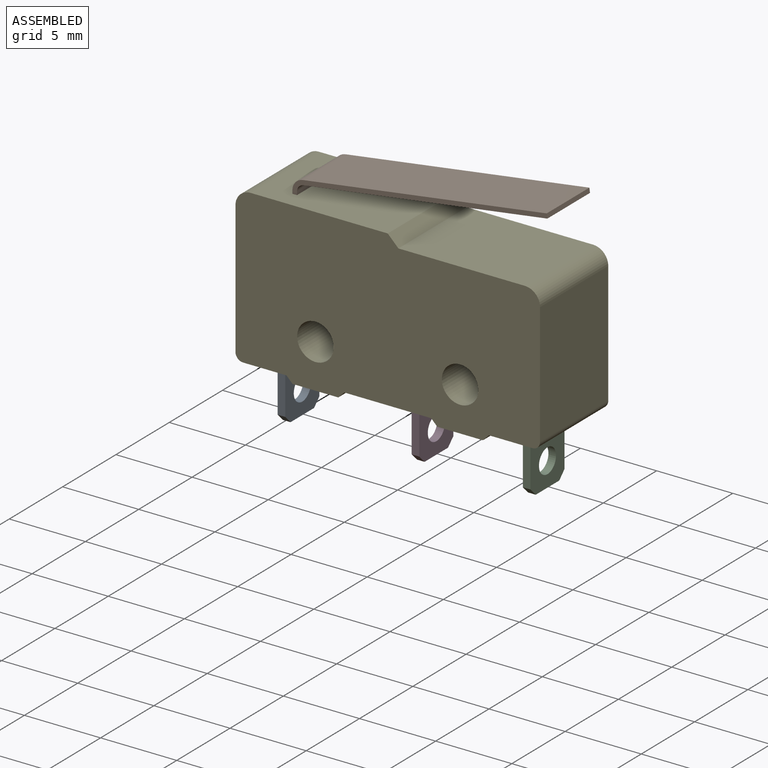
[diagram: assembled view]
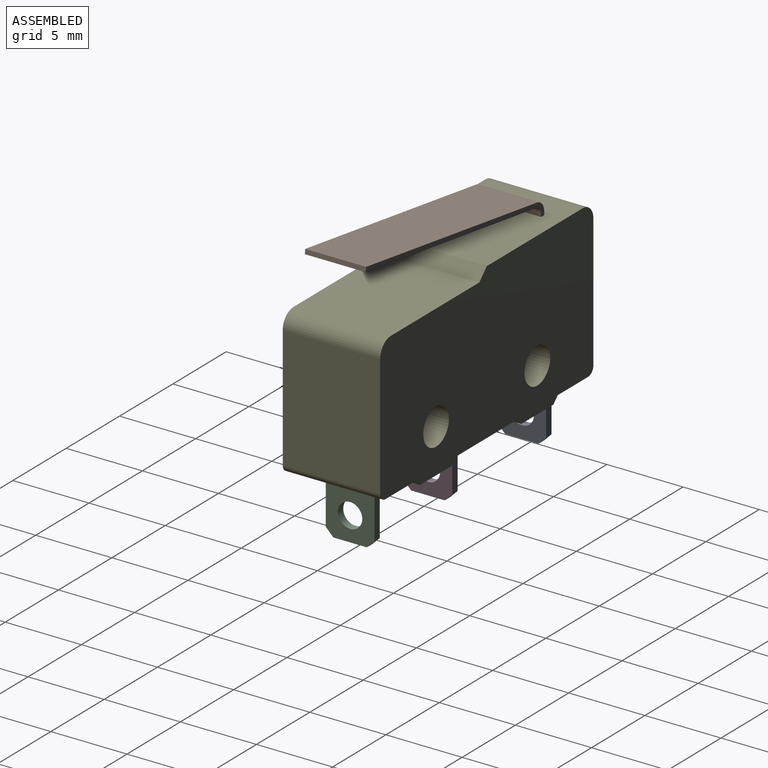
[diagram: assembled view, second angle]
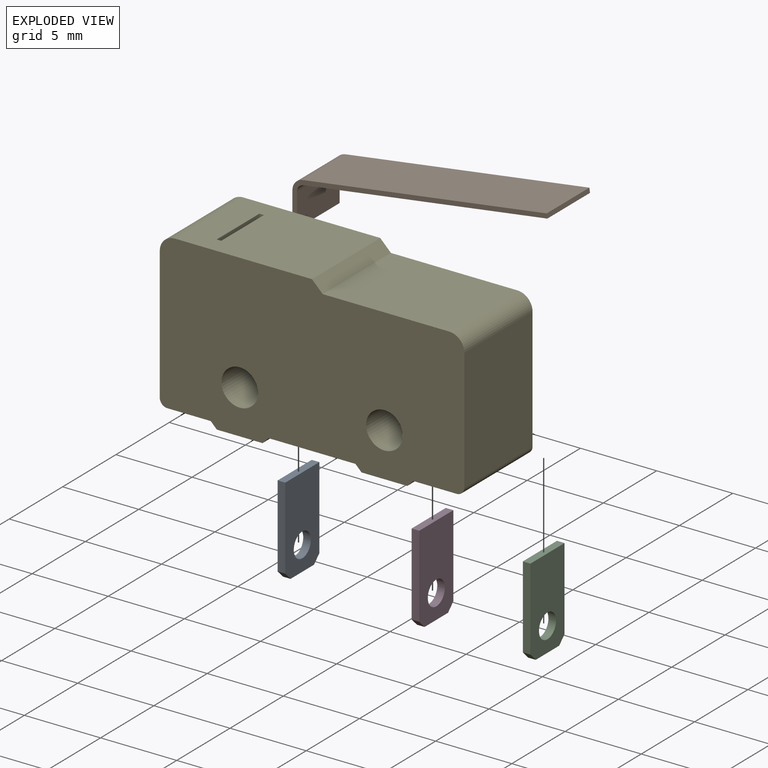
[diagram: exploded view]
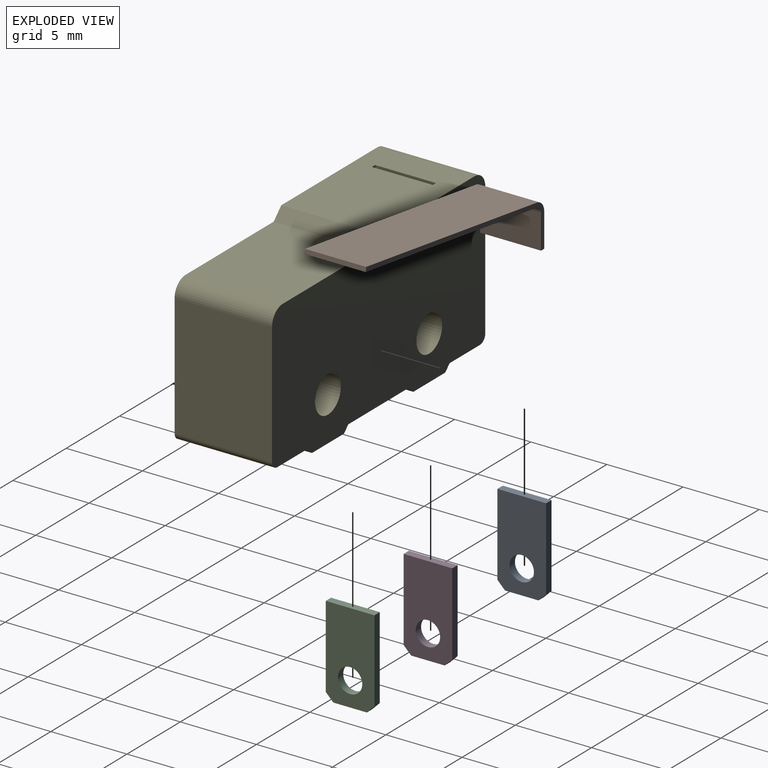
[diagram: exploded view, second angle]
ASSEMBLY  parts=5 mates=4
PART A: 9 faces, bbox 5.9x3.2x0.5 mm
  f0: plane 5.4x0.5mm, normal (0,1,0), area 2.7mm2, adj f1,f5,f7,f8
  f1: plane 3.2x0.5mm, normal (-1,0,0), area 1.6mm2, adj f0,f2,f7,f8
  f2: plane 5.4x0.5mm, normal (0,-1,0), area 2.7mm2, adj f1,f3,f7,f8
  f3: plane 0.5x0.5mm, normal (0.71,-0.71,0), area 0.4mm2, adj f2,f4,f7,f8
  f4: plane 2.2x0.5mm, normal (1,0,0), area 1.1mm2, adj f3,f5,f7,f8
  f5: plane 0.5x0.5mm, normal (0.71,0.71,0), area 0.4mm2, adj f0,f4,f7,f8
  f6: cylinder r=0.8mm len=1.6mm, axis (0,0,-1), area 2.5mm2, adj f7,f8
  f7: plane 5.9x3.2mm, normal (0,0,1), area 16.6mm2, adj f0,f1,f2,f3,f4,f5,f6
  f8: plane 5.9x3.2mm, normal (0,0,-1), area 16.6mm2, adj f0,f1,f2,f3,f4,f5,f6
PART B: 10 faces, bbox 16.7x4x5.3 mm
  f0: plane 16.01x4mm, normal (0.14,0,-0.99), area 64.7mm2, adj f1,f7,f8,f9
  f1: plane 4x0.3mm, normal (0.99,0,0.14), area 1.2mm2, adj f0,f2,f8,f9
  f2: plane 16.01x4mm, normal (-0.14,0,0.99), area 64.7mm2, adj f1,f3,f8,f9
  f3: cylinder r=0.8mm len=4mm, axis (0,1,0), area 4.6mm2, adj f2,f4,f8,f9
  f4: plane 4x2.21mm, normal (-1,0,0), area 8.8mm2, adj f3,f5,f8,f9
  f5: plane 4x0.3mm, normal (0,0,-1), area 1.2mm2, adj f4,f6,f8,f9
  f6: plane 4x2.21mm, normal (1,0,0), area 8.8mm2, adj f5,f7,f8,f9
  f7: cylinder r=0.5mm len=4mm, axis (0,1,0), area 2.9mm2, adj f0,f6,f8,f9
  f8: plane 16.74x5.3mm, normal (0,-1,0), area 5.8mm2, adj f0,f1,f2,f3,f4,f5,f6,f7
  f9: plane 16.74x5.3mm, normal (0,1,0), area 5.8mm2, adj f0,f1,f2,f3,f4,f5,f6,f7
PART C: same geometry as A
PART D: same geometry as A
PART E: 42 faces, bbox 20x6.4x10.6 mm
  f0: plane 8.7x6.4mm, normal (-1,0,0), area 55.7mm2, adj f1,f18,f20,f21
  f1: cylinder r=0.5mm len=6.4mm, axis (0,1,0), area 5mm2, adj f0,f2,f20,f21
  f2: plane 6.4x2.85mm, normal (0,0,-1), area 16.6mm2, adj f1,f3,f20,f21,f32,f33,f34,f35
  f3: plane 6.4x0.4mm, normal (-0.71,0,-0.71), area 3.6mm2, adj f2,f4,f20,f21
  f4: plane 6.4x3mm, normal (0,0,-1), area 19.2mm2, adj f3,f5,f20,f21
  f5: plane 6.4x0.4mm, normal (0.71,0,-0.71), area 3.6mm2, adj f4,f6,f20,f21
  f6: plane 6.4x5.7mm, normal (0,0,-1), area 34.9mm2, adj f5,f7,f20,f21,f27,f28,f29,f30
  f7: plane 6.4x0.4mm, normal (-0.71,0,-0.71), area 3.6mm2, adj f6,f8,f20,f21
  f8: plane 6.4x3mm, normal (0,0,-1), area 19.2mm2, adj f7,f9,f20,f21
  f9: plane 6.4x0.4mm, normal (0.71,0,-0.71), area 3.6mm2, adj f8,f10,f20,f21
  f10: plane 6.4x2.85mm, normal (0,0,-1), area 16.6mm2, adj f9,f11,f20,f21,f22,f23,f24,f25
  f11: cylinder r=0.5mm len=6.4mm, axis (0,1,0), area 5mm2, adj f10,f12,f20,f21
  f12: plane 8x6.4mm, normal (1,0,0), area 51.2mm2, adj f11,f13,f20,f21
  f13: cylinder r=1mm len=6.4mm, axis (0,1,0), area 10.1mm2, adj f12,f14,f20,f21
  f14: plane 8.3x6.4mm, normal (0,0,1), area 53.1mm2, adj f13,f15,f20,f21
  f15: plane 6.4x0.7mm, normal (0.71,0,0.71), area 6.3mm2, adj f14,f16,f20,f21
  f16: plane 9x6.4mm, normal (0,0,1), area 56.4mm2, adj f15,f18,f20,f21,f37,f38,f39,f40
  f17: cylinder r=1.2mm len=6.4mm, axis (0,1,0), area 48.3mm2, adj f20,f21
  f18: cylinder r=1mm len=6.4mm, axis (0,1,0), area 10.1mm2, adj f0,f16,f20,f21
  f19: cylinder r=1.2mm len=6.4mm, axis (0,1,0), area 48.3mm2, adj f20,f21
  f20: plane 20x10.6mm, normal (0,-1,0), area 190.4mm2, adj f0,f1,f2,f3,f4,f5,f6,f7
  f21: plane 20x10.6mm, normal (0,1,0), area 190.4mm2, adj f0,f1,f2,f3,f4,f5,f6,f7
  f22: plane 3.2x2mm, normal (1,0,0), area 6.4mm2, adj f10,f23,f25,f26
  f23: plane 2x0.5mm, normal (0,-1,0), area 1mm2, adj f10,f22,f24,f26
  f24: plane 3.2x2mm, normal (-1,0,0), area 6.4mm2, adj f10,f23,f25,f26
  f25: plane 2x0.5mm, normal (0,1,0), area 1mm2, adj f10,f22,f24,f26
  f26: plane 3.2x0.5mm, normal (0,0,-1), area 1.6mm2, adj f22,f23,f24,f25
  f27: plane 3.2x2mm, normal (1,0,0), area 6.4mm2, adj f6,f28,f30,f31
  f28: plane 2x0.5mm, normal (0,-1,0), area 1mm2, adj f6,f27,f29,f31
  f29: plane 3.2x2mm, normal (-1,0,0), area 6.4mm2, adj f6,f28,f30,f31
  f30: plane 2x0.5mm, normal (0,1,0), area 1mm2, adj f6,f27,f29,f31
  f31: plane 3.2x0.5mm, normal (0,0,-1), area 1.6mm2, adj f27,f28,f29,f30
  f32: plane 3.2x2mm, normal (1,0,0), area 6.4mm2, adj f2,f33,f35,f36
  f33: plane 2x0.5mm, normal (0,-1,0), area 1mm2, adj f2,f32,f34,f36
  f34: plane 3.2x2mm, normal (-1,0,0), area 6.4mm2, adj f2,f33,f35,f36
  f35: plane 2x0.5mm, normal (0,1,0), area 1mm2, adj f2,f32,f34,f36
  f36: plane 3.2x0.5mm, normal (0,0,-1), area 1.6mm2, adj f32,f33,f34,f35
  f37: plane 4x2mm, normal (1,0,0), area 8mm2, adj f16,f38,f40,f41
  f38: plane 2x0.3mm, normal (0,1,0), area 0.6mm2, adj f16,f37,f39,f41
  f39: plane 4x2mm, normal (-1,0,0), area 8mm2, adj f16,f38,f40,f41
  f40: plane 2x0.3mm, normal (0,-1,0), area 0.6mm2, adj f16,f37,f39,f41
  f41: plane 4x0.3mm, normal (0,0,1), area 1.2mm2, adj f37,f38,f39,f40
PLACE A rot(axis=(0,1,0),90deg) t=(-7.61,0.34,-0.63)mm
PLACE B t=(-6.36,3.94,5.57)mm
PLACE C rot(axis=(0,1,0),90deg) t=(8.49,0.34,-0.63)mm
PLACE D rot(axis=(0,1,0),90deg) t=(1.19,0.34,-0.63)mm
PLACE E t=(-9.26,5.14,-2.63)mm
MATE fastened C.f1 <-> E.f26  axis (0,0,1) through (8.74,1.94,-0.63)mm
MATE fastened B.f5 <-> E.f41  axis (0,0,-1) through (-6.21,1.94,5.57)mm
MATE fastened A.f1 <-> E.f36  axis (0,0,1) through (-7.36,1.94,-0.63)mm
MATE fastened D.f1 <-> E.f31  axis (0,0,1) through (1.44,1.94,-0.63)mm
